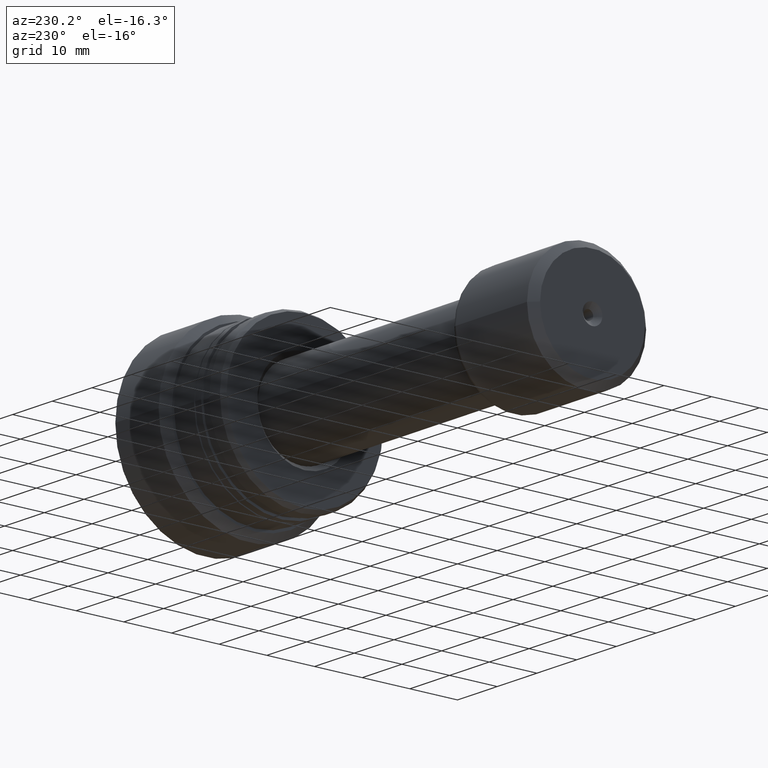
[diagram: clean part render]
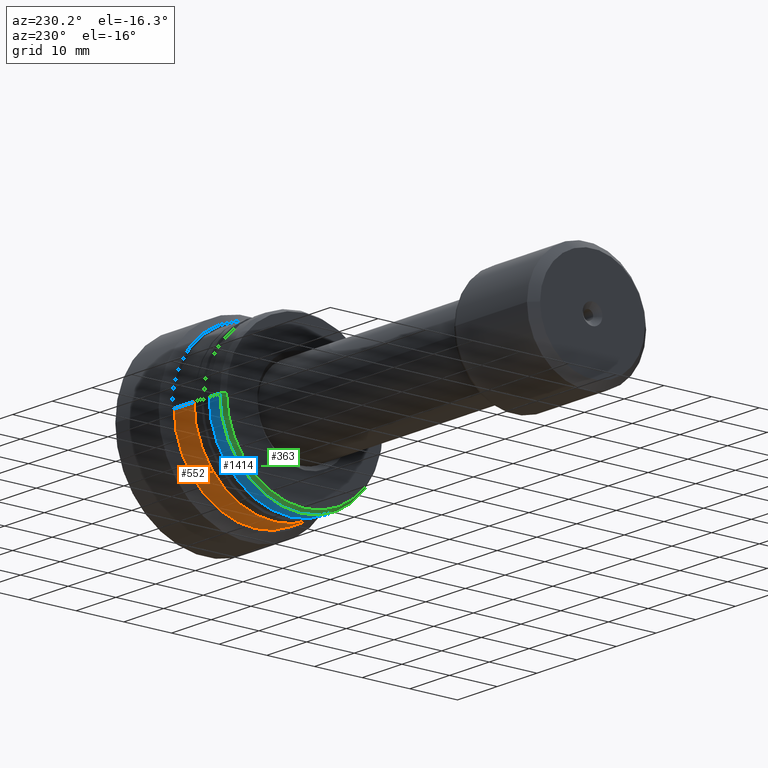
[diagram: same view with three faces highlighted in distinct colors, each labeled with its STEP entity id]
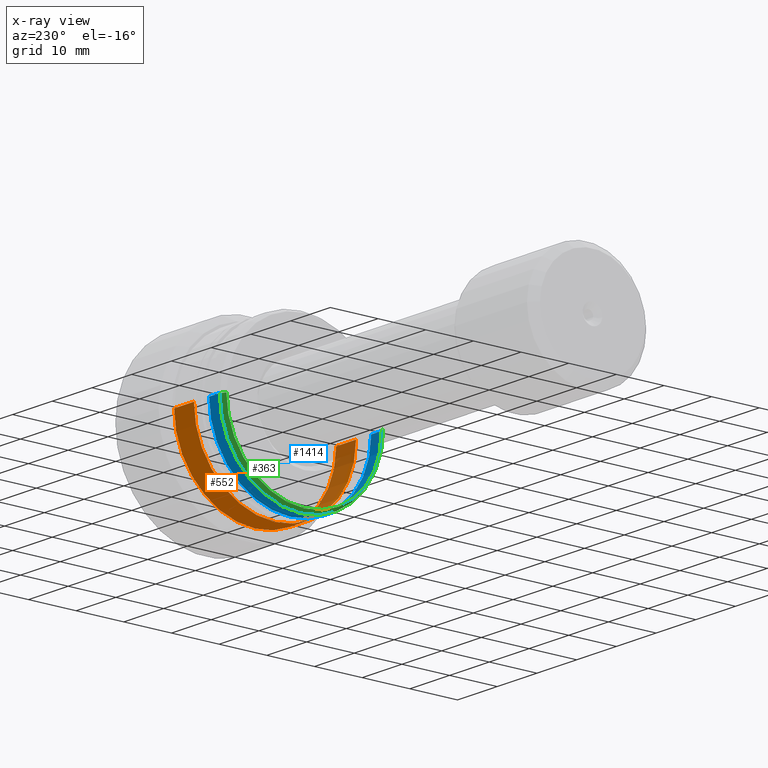
[diagram: x-ray of the same camera — body ghosted, the three highlighted faces saturated]
A machine part, auxiliary view with three faces highlighted in distinct colors.
The next image is the same camera in x-ray (body ghosted, the three faces saturated) — at least one of them is partly hidden behind the body in this view.
Their STEP definitions:

[orange] entity #552 — the highlighted cylindrical surface (partial cylindrical patch) has radius 17 mm, axis along (-1, 0, 0).
#32 = DIRECTION ( 'NONE',  ( -1.020425574104004985E-15, -1.000000000000000000, 0.000000000000000000 ) ) ;
#86 = CARTESIAN_POINT ( 'NONE',  ( -13.99999999999999822, -17.00000000000000355, 0.000000000000000000 ) ) ;
#98 = AXIS2_PLACEMENT_3D ( 'NONE', #1594, #669, #2167 ) ;
#123 = EDGE_CURVE ( 'NONE', #1569, #1776, #2133, .T. ) ;
#227 = CARTESIAN_POINT ( 'NONE',  ( -13.99999999999998046, -1.597083568161236364E-14, 0.000000000000000000 ) ) ;
#269 = CARTESIAN_POINT ( 'NONE',  ( -13.99999999999996447, 16.99999999999997158, 2.081899558550499096E-15 ) ) ;
#334 = VERTEX_POINT ( 'NONE', #269 ) ;
#433 = DIRECTION ( 'NONE',  ( -1.020425574104004788E-15, -1.000000000000000000, 0.000000000000000000 ) ) ;
#452 = CARTESIAN_POINT ( 'NONE',  ( -30.28002276692734185, -16.99999999999998934, 0.000000000000000000 ) ) ;
#552 = ADVANCED_FACE ( 'NONE', ( #1670 ), #1487, .T. ) ;
#595 = DIRECTION ( 'NONE',  ( -1.000000000000000000, 9.810081908519753690E-16, -0.000000000000000000 ) ) ;
#669 = DIRECTION ( 'NONE',  ( -1.000000000000000000, 9.810081908519753690E-16, -0.000000000000000000 ) ) ;
#888 = ORIENTED_EDGE ( 'NONE', *, *, #1978, .T. ) ;
#1046 = VERTEX_POINT ( 'NONE', #1992 ) ;
#1145 = CIRCLE ( 'NONE', #2069, 16.99999999999998579 ) ;
#1182 = DIRECTION ( 'NONE',  ( -1.000000000000000000, 9.810081908519753690E-16, -0.000000000000000000 ) ) ;
#1319 = AXIS2_PLACEMENT_3D ( 'NONE', #2247, #595, #433 ) ;
#1371 = ORIENTED_EDGE ( 'NONE', *, *, #2066, .F. ) ;
#1380 = ORIENTED_EDGE ( 'NONE', *, *, #2008, .F. ) ;
#1487 = CYLINDRICAL_SURFACE ( 'NONE', #1319, 16.99999999999998934 ) ;
#1569 = VERTEX_POINT ( 'NONE', #86 ) ;
#1594 = CARTESIAN_POINT ( 'NONE',  ( -18.99999999999998224, -1.106579472735248521E-14, 0.000000000000000000 ) ) ;
#1670 = FACE_OUTER_BOUND ( 'NONE', #2422, .T. ) ;
#1711 = DIRECTION ( 'NONE',  ( -1.000000000000000000, 9.810081908519753690E-16, -0.000000000000000000 ) ) ;
#1772 = LINE ( 'NONE', #1784, #1854 ) ;
#1776 = VERTEX_POINT ( 'NONE', #2407 ) ;
#1784 = CARTESIAN_POINT ( 'NONE',  ( -30.28002276692730632, 16.99999999999998934, 2.081899558550499491E-15 ) ) ;
#1854 = VECTOR ( 'NONE', #2179, 1000.000000000000000 ) ;
#1886 = ORIENTED_EDGE ( 'NONE', *, *, #123, .T. ) ;
#1978 = EDGE_CURVE ( 'NONE', #334, #1569, #1145, .T. ) ;
#1992 = CARTESIAN_POINT ( 'NONE',  ( -18.99999999999996447, 16.99999999999998224, 2.081899558550499885E-15 ) ) ;
#2008 = EDGE_CURVE ( 'NONE', #334, #1046, #1772, .T. ) ;
#2066 = EDGE_CURVE ( 'NONE', #1046, #1776, #2222, .T. ) ;
#2069 = AXIS2_PLACEMENT_3D ( 'NONE', #227, #1711, #32 ) ;
#2133 = LINE ( 'NONE', #452, #2157 ) ;
#2157 = VECTOR ( 'NONE', #1182, 1000.000000000000000 ) ;
#2167 = DIRECTION ( 'NONE',  ( -1.020425574104004591E-15, -1.000000000000000000, 0.000000000000000000 ) ) ;
#2179 = DIRECTION ( 'NONE',  ( -1.000000000000000000, 9.810081908519753690E-16, -0.000000000000000000 ) ) ;
#2222 = CIRCLE ( 'NONE', #98, 16.99999999999999289 ) ;
#2247 = CARTESIAN_POINT ( 'NONE',  ( -30.28002276692732408, 0.000000000000000000, 0.000000000000000000 ) ) ;
#2407 = CARTESIAN_POINT ( 'NONE',  ( -19.00000000000000000, -17.00000000000000355, 0.000000000000000000 ) ) ;
#2422 = EDGE_LOOP ( 'NONE', ( #1380, #888, #1886, #1371 ) ) ;

[blue] entity #1414 — the highlighted cylindrical surface (partial cylindrical patch) has radius 17 mm, axis along (-1, 0, 0).
#74 = AXIS2_PLACEMENT_3D ( 'NONE', #1103, #1836, #2204 ) ;
#88 = VERTEX_POINT ( 'NONE', #1748 ) ;
#95 = DIRECTION ( 'NONE',  ( -1.000000000000000000, 9.810081908519753690E-16, -0.000000000000000000 ) ) ;
#109 = CARTESIAN_POINT ( 'NONE',  ( -30.28002276692730632, 16.99999999999999645, 2.081899558550499885E-15 ) ) ;
#140 = AXIS2_PLACEMENT_3D ( 'NONE', #904, #1811, #153 ) ;
#143 = CARTESIAN_POINT ( 'NONE',  ( -22.80878161770237966, -17.00000000000000000, 0.000000000000000000 ) ) ;
#153 = DIRECTION ( 'NONE',  ( -1.020425574104004591E-15, -1.000000000000000000, 0.000000000000000000 ) ) ;
#205 = FACE_OUTER_BOUND ( 'NONE', #1355, .T. ) ;
#244 = EDGE_CURVE ( 'NONE', #1037, #2062, #2093, .T. ) ;
#282 = LINE ( 'NONE', #109, #2258 ) ;
#403 = CARTESIAN_POINT ( 'NONE',  ( -30.28002276692734185, -16.99999999999999645, 0.000000000000000000 ) ) ;
#413 = CYLINDRICAL_SURFACE ( 'NONE', #2105, 16.99999999999999645 ) ;
#630 = ORIENTED_EDGE ( 'NONE', *, *, #1724, .T. ) ;
#649 = ORIENTED_EDGE ( 'NONE', *, *, #244, .T. ) ;
#730 = CIRCLE ( 'NONE', #140, 16.99999999999999289 ) ;
#801 = CARTESIAN_POINT ( 'NONE',  ( -30.28002276692732408, 0.000000000000000000, 0.000000000000000000 ) ) ;
#904 = CARTESIAN_POINT ( 'NONE',  ( -22.80878161770236190, -7.329348763220012769E-15, 0.000000000000000000 ) ) ;
#1037 = VERTEX_POINT ( 'NONE', #143 ) ;
#1074 = ORIENTED_EDGE ( 'NONE', *, *, #1219, .F. ) ;
#1085 = VERTEX_POINT ( 'NONE', #2418 ) ;
#1088 = CIRCLE ( 'NONE', #74, 17.00000000000000000 ) ;
#1103 = CARTESIAN_POINT ( 'NONE',  ( -25.50000000000015987, -4.689241486814468610E-15, 0.000000000000000000 ) ) ;
#1156 = VECTOR ( 'NONE', #1840, 1000.000000000000000 ) ;
#1219 = EDGE_CURVE ( 'NONE', #88, #2062, #1088, .T. ) ;
#1355 = EDGE_LOOP ( 'NONE', ( #2416, #630, #649, #1074 ) ) ;
#1414 = ADVANCED_FACE ( 'NONE', ( #205 ), #413, .T. ) ;
#1515 = DIRECTION ( 'NONE',  ( -1.020425574104004394E-15, -1.000000000000000000, 0.000000000000000000 ) ) ;
#1704 = DIRECTION ( 'NONE',  ( -1.000000000000000000, 9.810081908519753690E-16, -0.000000000000000000 ) ) ;
#1724 = EDGE_CURVE ( 'NONE', #1085, #1037, #730, .T. ) ;
#1748 = CARTESIAN_POINT ( 'NONE',  ( -25.50000000000014566, 16.99999999999999289, 0.000000000000000000 ) ) ;
#1811 = DIRECTION ( 'NONE',  ( -1.000000000000000000, 9.810081908519753690E-16, -0.000000000000000000 ) ) ;
#1836 = DIRECTION ( 'NONE',  ( -1.000000000000000000, 9.810081908519753690E-16, -0.000000000000000000 ) ) ;
#1840 = DIRECTION ( 'NONE',  ( -1.000000000000000000, 9.810081908519753690E-16, -0.000000000000000000 ) ) ;
#2015 = EDGE_CURVE ( 'NONE', #1085, #88, #282, .T. ) ;
#2062 = VERTEX_POINT ( 'NONE', #2142 ) ;
#2093 = LINE ( 'NONE', #403, #1156 ) ;
#2105 = AXIS2_PLACEMENT_3D ( 'NONE', #801, #1704, #1515 ) ;
#2142 = CARTESIAN_POINT ( 'NONE',  ( -25.50000000000017764, -17.00000000000000355, 2.081899558550500674E-15 ) ) ;
#2204 = DIRECTION ( 'NONE',  ( -1.020425574104004196E-15, -1.000000000000000000, 0.000000000000000000 ) ) ;
#2258 = VECTOR ( 'NONE', #95, 1000.000000000000000 ) ;
#2416 = ORIENTED_EDGE ( 'NONE', *, *, #2015, .F. ) ;
#2418 = CARTESIAN_POINT ( 'NONE',  ( -22.80878161770234414, 16.99999999999998579, 2.081899558550499885E-15 ) ) ;

[green] entity #363 — the highlighted conical surface has half-angle 30 deg.
#4 = CARTESIAN_POINT ( 'NONE',  ( -26.49999999999996092, 16.42264973081047330, 0.000000000000000000 ) ) ;
#50 = EDGE_CURVE ( 'NONE', #894, #133, #1477, .T. ) ;
#74 = AXIS2_PLACEMENT_3D ( 'NONE', #1103, #1836, #2204 ) ;
#88 = VERTEX_POINT ( 'NONE', #1748 ) ;
#133 = VERTEX_POINT ( 'NONE', #271 ) ;
#160 = ORIENTED_EDGE ( 'NONE', *, *, #50, .F. ) ;
#209 = DIRECTION ( 'NONE',  ( 0.8660254037844361541, -0.5000000000000043299, 6.123233995736807944E-17 ) ) ;
#238 = LINE ( 'NONE', #1908, #522 ) ;
#271 = CARTESIAN_POINT ( 'NONE',  ( -26.49999999999999645, -16.42264973081048041, 2.046547050593009849E-15 ) ) ;
#363 = ADVANCED_FACE ( 'NONE', ( #800 ), #520, .T. ) ;
#513 = EDGE_LOOP ( 'NONE', ( #1604, #160, #1864, #1334 ) ) ;
#520 = CONICAL_SURFACE ( 'NONE', #1753, 16.42264973081047685, 0.5235987755983029235 ) ;
#522 = VECTOR ( 'NONE', #1566, 1000.000000000000227 ) ;
#527 = CARTESIAN_POINT ( 'NONE',  ( -26.49999999999999645, -16.42264973081048041, 2.011194542635519419E-15 ) ) ;
#800 = FACE_OUTER_BOUND ( 'NONE', #513, .T. ) ;
#867 = LINE ( 'NONE', #527, #2151 ) ;
#894 = VERTEX_POINT ( 'NONE', #4 ) ;
#925 = EDGE_CURVE ( 'NONE', #894, #88, #238, .T. ) ;
#986 = DIRECTION ( 'NONE',  ( 1.000000000000000000, -9.810081908519753690E-16, 0.000000000000000000 ) ) ;
#1088 = CIRCLE ( 'NONE', #74, 17.00000000000000000 ) ;
#1103 = CARTESIAN_POINT ( 'NONE',  ( -25.50000000000015987, -4.689241486814468610E-15, 0.000000000000000000 ) ) ;
#1219 = EDGE_CURVE ( 'NONE', #88, #2062, #1088, .T. ) ;
#1334 = ORIENTED_EDGE ( 'NONE', *, *, #1219, .T. ) ;
#1473 = DIRECTION ( 'NONE',  ( -1.000000000000000000, 9.810081908519753690E-16, -0.000000000000000000 ) ) ;
#1477 = CIRCLE ( 'NONE', #1712, 16.42264973081047685 ) ;
#1552 = DIRECTION ( 'NONE',  ( 1.056299381897123643E-15, 1.000000000000000000, 0.000000000000000000 ) ) ;
#1566 = DIRECTION ( 'NONE',  ( 0.8660254037844370423, 0.5000000000000026645, 0.000000000000000000 ) ) ;
#1604 = ORIENTED_EDGE ( 'NONE', *, *, #2205, .F. ) ;
#1712 = AXIS2_PLACEMENT_3D ( 'NONE', #1843, #1473, #2056 ) ;
#1748 = CARTESIAN_POINT ( 'NONE',  ( -25.50000000000014566, 16.99999999999999289, 0.000000000000000000 ) ) ;
#1753 = AXIS2_PLACEMENT_3D ( 'NONE', #2129, #986, #1552 ) ;
#1836 = DIRECTION ( 'NONE',  ( -1.000000000000000000, 9.810081908519753690E-16, -0.000000000000000000 ) ) ;
#1843 = CARTESIAN_POINT ( 'NONE',  ( -26.49999999999997868, -3.708233295962672312E-15, 0.000000000000000000 ) ) ;
#1864 = ORIENTED_EDGE ( 'NONE', *, *, #925, .T. ) ;
#1908 = CARTESIAN_POINT ( 'NONE',  ( -26.49999999999996092, 16.42264973081047330, 0.000000000000000000 ) ) ;
#2056 = DIRECTION ( 'NONE',  ( -1.056299381897123643E-15, -1.000000000000000000, 0.000000000000000000 ) ) ;
#2062 = VERTEX_POINT ( 'NONE', #2142 ) ;
#2129 = CARTESIAN_POINT ( 'NONE',  ( -26.49999999999997868, -3.708233295962672312E-15, 0.000000000000000000 ) ) ;
#2142 = CARTESIAN_POINT ( 'NONE',  ( -25.50000000000017764, -17.00000000000000355, 2.081899558550500674E-15 ) ) ;
#2151 = VECTOR ( 'NONE', #209, 1000.000000000000114 ) ;
#2205 = EDGE_CURVE ( 'NONE', #133, #2062, #867, .T. ) ;
#2204 = DIRECTION ( 'NONE',  ( -1.020425574104004196E-15, -1.000000000000000000, 0.000000000000000000 ) ) ;